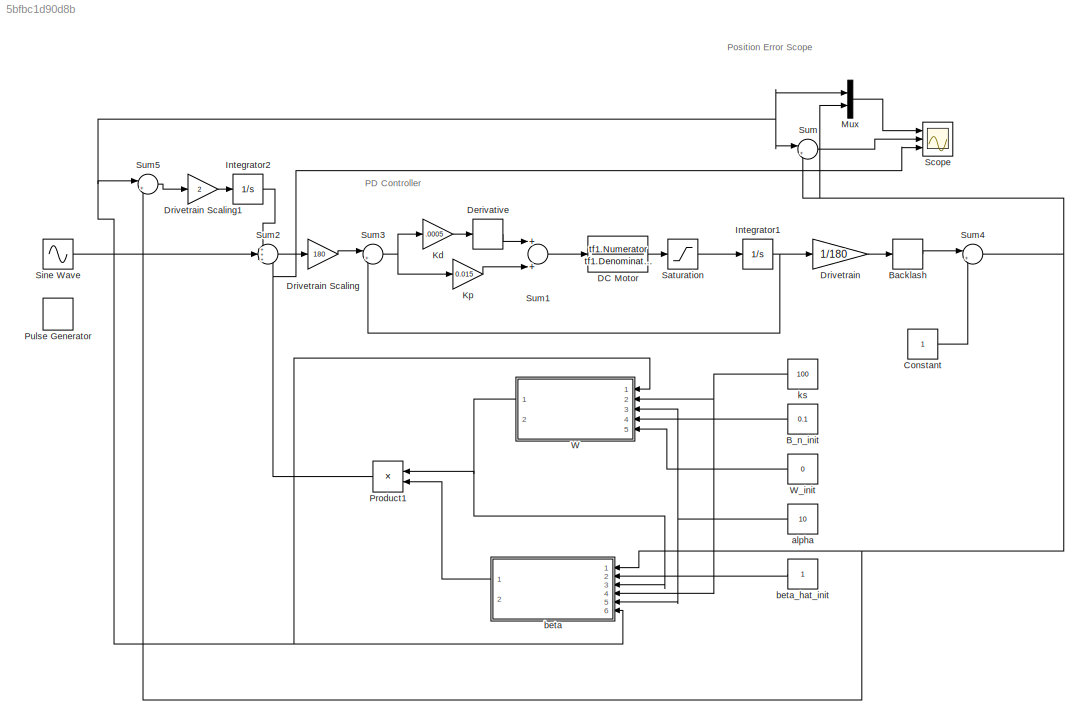
MODEL slx_5bfbc1d90d8b
KIND model
CONFIG AbsTol = auto
CONFIG EnableMultiTasking = off
CONFIG FixedStep = auto
CONFIG MaxStep = auto
CONFIG MinStep = auto
CONFIG RelTol = 1e-3
CONFIG SampleTimeConstraint = Unconstrained
CONFIG Solver = VariableStepAuto
CONFIG SolverName = VariableStepAuto
CONFIG StartTime = 0.0
CONFIG StopTime = 100
BLOCK [Constant] B_n_init
  Value = 0.1
BLOCK [Backlash] Backlash
  BacklashWidth = 0.25
  InputProcessing = Elements as channels (sample based)
BLOCK [Constant] Constant
BLOCK [TransferFcn] DC Motor
  Denominator = tf1.Denominator
  Numerator = tf1.Numerator
BLOCK [Derivative] Derivative
BLOCK [Gain] Drivetrain
  Gain = 1/180
  OutDataTypeStr = Inherit: Inherit via internal rule
  ParamDataTypeStr = Inherit: Inherit via internal rule
  SaturateOnIntegerOverflow = off
BLOCK [Gain] Drivetrain Scaling
  Gain = 180
  OutDataTypeStr = Inherit: Inherit via internal rule
  ParamDataTypeStr = Inherit: Inherit via internal rule
  SaturateOnIntegerOverflow = off
BLOCK [Gain] Drivetrain Scaling1
  Gain = 2
  OutDataTypeStr = Inherit: Inherit via internal rule
  ParamDataTypeStr = Inherit: Inherit via internal rule
  SaturateOnIntegerOverflow = off
BLOCK [Integrator] Integrator1
  Ports = [1, 1]
BLOCK [Integrator] Integrator2
  LimitOutput = on
  LowerSaturationLimit = -5
  Ports = [1, 1]
  UpperSaturationLimit = 5
BLOCK [Gain] Kd
  Gain = .0005
  OutDataTypeStr = Inherit: Inherit via internal rule
  ParamDataTypeStr = Inherit: Inherit via internal rule
  SaturateOnIntegerOverflow = off
BLOCK [Gain] Kp
  Gain = 0.015
  OutDataTypeStr = Inherit: Inherit via internal rule
  ParamDataTypeStr = Inherit: Inherit via internal rule
  SaturateOnIntegerOverflow = off
BLOCK [Mux] Mux
  DisplayOption = bar
  Inputs = 2
  Ports = [2, 1]
BLOCK [Product] Product1
  InputSameDT = off
  OutDataTypeStr = Inherit: Inherit via internal rule
  Ports = [2, 1]
  RndMeth = Floor
  SaturateOnIntegerOverflow = off
BLOCK [DiscretePulseGenerator] Pulse Generator
  Period = 10
  PhaseDelay = 0.5
  Ports = [0, 1]
  PulseType = Time based
  PulseWidth = 50
BLOCK [Saturate] Saturation
  InputPortMap = u0
  LowerLimit = -460
  Ports = [1, 1]
  UpperLimit = 460
BLOCK [Scope] Scope
  NumInputPorts = 3
  Ports = [3]
  ScopeSpecificationString = Simulink.scopes.TimeScopeBlockCfg('CurrentConfiguration', extmgr.ConfigurationSet(extmgr.Configuration('Core','General UI',true),extmgr.Configuration('Core','Source UI',true),extmgr.Configuration('Sources','WiredSimulink',true),extmgr.Configuration('Visuals','Time Domain',true,'SerializedDisplays',{struct('MinYLimReal','-2.54967','MaxYLimReal','2.61267','YLabelReal','','MinYLimMag','0.00000','MaxY...<+2758ch>
BLOCK [Sin] Sine Wave
  Amplitude = 2
  Ports = [0, 1]
  SampleTime = 0
BLOCK [Sum] Sum
  IconShape = round
  InputSameDT = off
  Inputs = |+-
  OutDataTypeStr = Inherit: Inherit via internal rule
  Ports = [2, 1]
  SaturateOnIntegerOverflow = off
BLOCK [Sum] Sum1
  InputSameDT = off
  OutDataTypeStr = Inherit: Inherit via internal rule
  Ports = [2, 1]
  SaturateOnIntegerOverflow = off
BLOCK [Sum] Sum2
  IconShape = round
  InputSameDT = off
  Inputs = +++
  OutDataTypeStr = Inherit: Inherit via internal rule
  Ports = [3, 1]
  SaturateOnIntegerOverflow = off
BLOCK [Sum] Sum3
  IconShape = round
  InputSameDT = off
  Inputs = |+-
  OutDataTypeStr = Inherit: Inherit via internal rule
  Ports = [2, 1]
  SaturateOnIntegerOverflow = off
BLOCK [Sum] Sum4
  IconShape = round
  InputSameDT = off
  Inputs = |++
  OutDataTypeStr = Inherit: Inherit via internal rule
  Ports = [2, 1]
  SaturateOnIntegerOverflow = off
BLOCK [Sum] Sum5
  IconShape = round
  InputSameDT = off
  Inputs = |+-
  OutDataTypeStr = Inherit: Inherit via internal rule
  Ports = [2, 1]
  SaturateOnIntegerOverflow = off
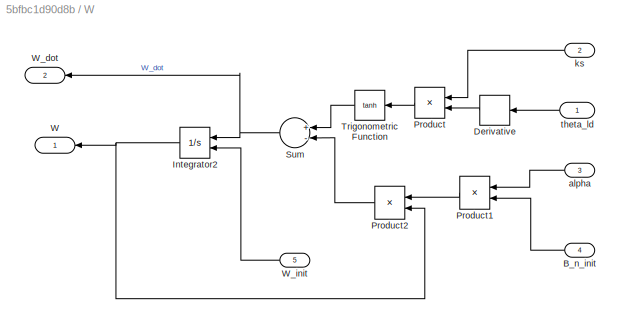
BLOCK [SubSystem] W
  Ports = [5, 2]
  RequestExecContextInheritance = off
  Variant = off
BLOCK [Inport] W/B_n_init
  IconDisplay = Port number
  Port = 4
BLOCK [Derivative] W/Derivative
BLOCK [Integrator] W/Integrator2
  InitialConditionSource = external
  Ports = [2, 1]
BLOCK [Product] W/Product
  InputSameDT = off
  OutDataTypeStr = Inherit: Inherit via internal rule
  Ports = [2, 1]
  RndMeth = Floor
  SaturateOnIntegerOverflow = off
BLOCK [Product] W/Product1
  InputSameDT = off
  Inputs = */
  OutDataTypeStr = Inherit: Inherit via internal rule
  Ports = [2, 1]
  RndMeth = Floor
  SaturateOnIntegerOverflow = off
BLOCK [Product] W/Product2
  InputSameDT = off
  OutDataTypeStr = Inherit: Inherit via internal rule
  Ports = [2, 1]
  RndMeth = Floor
  SaturateOnIntegerOverflow = off
BLOCK [Sum] W/Sum
  InputSameDT = off
  Inputs = +-
  OutDataTypeStr = Inherit: Inherit via internal rule
  Ports = [2, 1]
  SaturateOnIntegerOverflow = off
BLOCK [Trigonometry] W/Trigonometric Function
  Operator = tanh
  Ports = [1, 1]
BLOCK [Outport] W/W
  IconDisplay = Port number
BLOCK [Outport] W/W_dot
  IconDisplay = Port number
  Port = 2
BLOCK [Inport] W/W_init
  IconDisplay = Port number
  Port = 5
BLOCK [Inport] W/alpha
  IconDisplay = Port number
  Port = 3
BLOCK [Inport] W/ks
  IconDisplay = Port number
  Port = 2
BLOCK [Inport] W/theta_ld
  IconDisplay = Port number
BLOCK [Constant] W_init
  Value = 0
BLOCK [Constant] alpha
  Value = 10
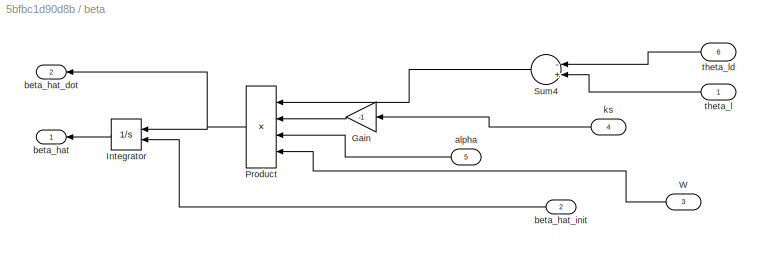
BLOCK [SubSystem] beta
  Ports = [6, 2]
  RequestExecContextInheritance = off
  Variant = off
BLOCK [Gain] beta/Gain
  Gain = -1
  OutDataTypeStr = Inherit: Inherit via internal rule
  ParamDataTypeStr = Inherit: Inherit via internal rule
  SaturateOnIntegerOverflow = off
BLOCK [Integrator] beta/Integrator
  InitialConditionSource = external
  Ports = [2, 1]
BLOCK [Product] beta/Product
  InputSameDT = off
  Inputs = ****
  OutDataTypeStr = Inherit: Inherit via internal rule
  Ports = [4, 1]
  RndMeth = Floor
  SaturateOnIntegerOverflow = off
BLOCK [Sum] beta/Sum4
  InputSameDT = off
  Inputs = -+
  OutDataTypeStr = Inherit: Inherit via internal rule
  Ports = [2, 1]
  SaturateOnIntegerOverflow = off
BLOCK [Inport] beta/W
  IconDisplay = Port number
  Port = 3
BLOCK [Inport] beta/alpha
  IconDisplay = Port number
  Port = 5
BLOCK [Outport] beta/beta_hat
  IconDisplay = Port number
BLOCK [Outport] beta/beta_hat_dot
  IconDisplay = Port number
  Port = 2
BLOCK [Inport] beta/beta_hat_init
  IconDisplay = Port number
  Port = 2
BLOCK [Inport] beta/ks
  IconDisplay = Port number
  Port = 4
BLOCK [Inport] beta/theta_l
  IconDisplay = Port number
BLOCK [Inport] beta/theta_ld
  IconDisplay = Port number
  Port = 6
BLOCK [Constant] beta_hat_init
BLOCK [Constant] ks
  Value = 100
ANNOTATION (root): PD Controller
ANNOTATION (root): Position Error Scope
LINE B_n_init:1 -> W:4
LINE Backlash:1 -> Sum4:1
LINE Constant:1 -> Sum4:2
LINE DC Motor:1 -> Saturation:1
LINE Derivative:1 -> Sum1:1
LINE Drivetrain Scaling1:1 -> Integrator2:1
LINE Drivetrain Scaling:1 -> Sum3:1
LINE Drivetrain:1 -> Backlash:1
NET Integrator1:1 -> Drivetrain:1, Sum3:2
LINE Integrator2:1 -> Sum2:1
LINE Kd:1 -> Derivative:1
LINE Kp:1 -> Sum1:2
LINE Mux:1 -> Scope:1
NET Product1:1 -> Scope:3, Sum2:3
LINE Saturation:1 -> Integrator1:1
NET Sine Wave:1 -> Mux:1, Sum2:2, Sum5:1, Sum:1, W:1, beta:6
LINE Sum1:1 -> DC Motor:1
LINE Sum2:1 -> Drivetrain Scaling:1
NET Sum3:1 -> Kd:1, Kp:1
NET Sum4:1 -> Mux:2, Sum5:2, Sum:2, beta:1
LINE Sum5:1 -> Drivetrain Scaling1:1
LINE Sum:1 -> Scope:2
LINE W/B_n_init:1 -> W/Product1:2
LINE W/Derivative:1 -> W/Product:2
NET W/Integrator2:1 -> W/Product2:2, W/W:1
LINE W/Product1:1 -> W/Product2:1
LINE W/Product2:1 -> W/Sum:2
LINE W/Product:1 -> W/Trigonometric Function:1
NET W/Sum:1 -> W/Integrator2:1, W/W_dot:1
LINE W/Trigonometric Function:1 -> W/Sum:1
LINE W/W_init:1 -> W/Integrator2:2
LINE W/alpha:1 -> W/Product1:1
LINE W/ks:1 -> W/Product:1
LINE W/theta_ld:1 -> W/Derivative:1
NET W:1 -> Product1:1, beta:3
LINE W_init:1 -> W:5
NET alpha:1 -> W:3, beta:5
LINE beta/Gain:1 -> beta/Product:2
LINE beta/Integrator:1 -> beta/beta_hat:1
NET beta/Product:1 -> beta/Integrator:1, beta/beta_hat_dot:1
LINE beta/Sum4:1 -> beta/Product:1
LINE beta/W:1 -> beta/Product:4
LINE beta/alpha:1 -> beta/Product:3
LINE beta/beta_hat_init:1 -> beta/Integrator:2
LINE beta/ks:1 -> beta/Gain:1
LINE beta/theta_l:1 -> beta/Sum4:2
LINE beta/theta_ld:1 -> beta/Sum4:1
LINE beta:1 -> Product1:2
LINE beta_hat_init:1 -> beta:2
NET ks:1 -> W:2, beta:4
note: NET lines group one-source signal fan-out (src -> all destinations, sorted); 1:1 wires keep LINE
